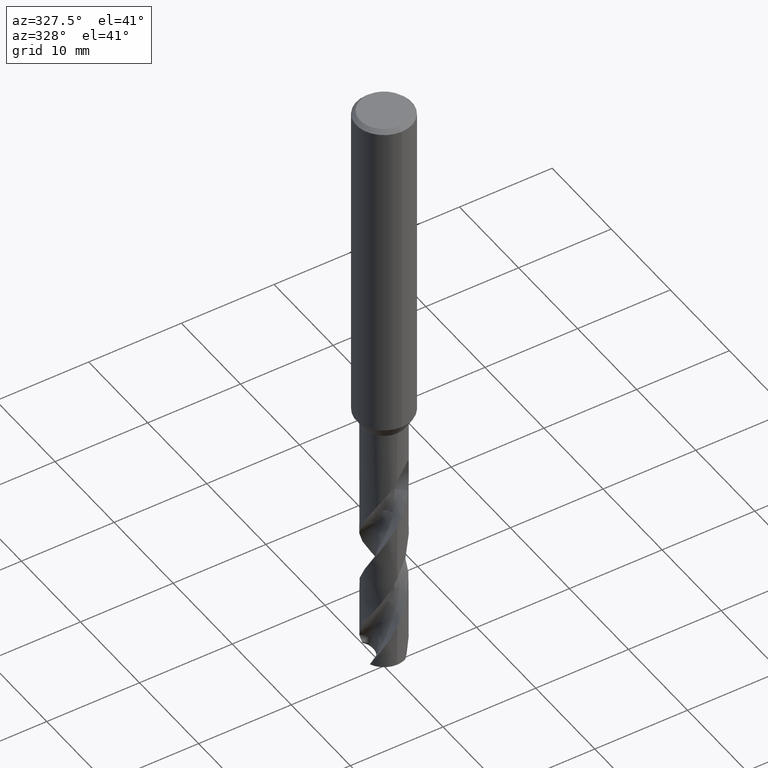
[diagram: clean part render]
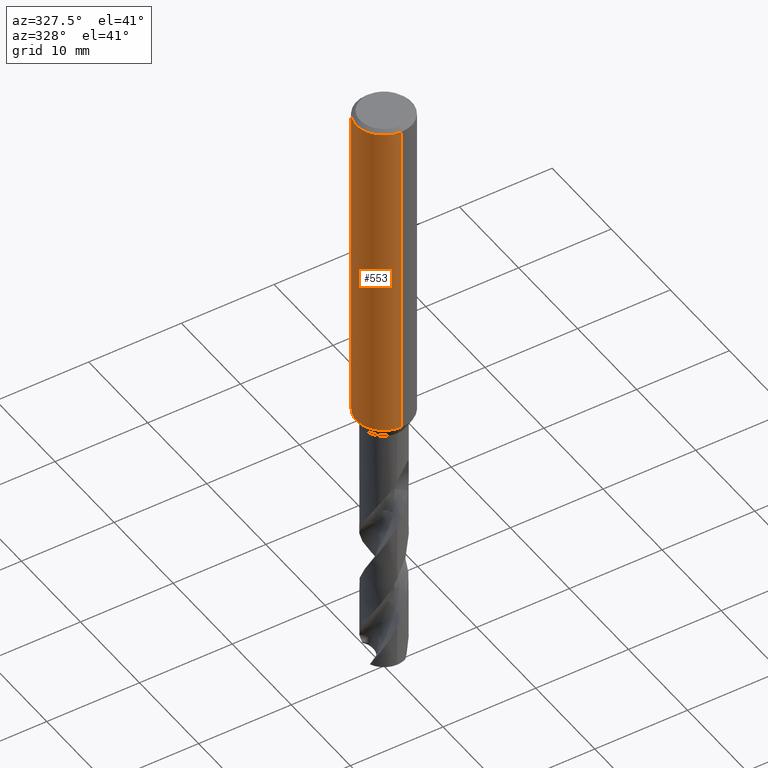
[diagram: same view with one face highlighted and labeled with its STEP entity id]
A machine part, auxiliary view. The second image highlights one B-rep face of the part: STEP entity #553.
In plain terms, the highlighted cylindrical surface (edge-blend (fillet) strip) has radius 3 mm, axis along (-0, -0, 1).
Its self-contained STEP definition (entity closure, byte-faithful):
#355=EDGE_CURVE('',#601,#515,#887,.T.);
#367=VERTEX_POINT('',#899);
#453=VERTEX_POINT('',#992);
#465=VERTEX_POINT('',#1005);
#475=EDGE_CURVE('',#709,#551,#1017,.T.);
#479=VERTEX_POINT('',#1021);
#491=EDGE_CURVE('',#545,#735,#1035,.T.);
#513=VERTEX_POINT('',#1058);
#515=VERTEX_POINT('',#1060);
#531=EDGE_CURVE('',#453,#601,#1077,.T.);
#535=EDGE_CURVE('',#465,#709,#1081,.T.);
#545=VERTEX_POINT('',#1091);
#547=EDGE_CURVE('',#551,#545,#1093,.T.);
#551=VERTEX_POINT('',#1097);
#553=ADVANCED_FACE('',(#1099),#1100,.T.);
#571=EDGE_CURVE('',#367,#453,#1121,.T.);
#599=VERTEX_POINT('',#1153);
#601=VERTEX_POINT('',#1155);
#623=EDGE_CURVE('',#735,#479,#1180,.T.);
#643=EDGE_CURVE('',#599,#515,#1204,.T.);
#653=EDGE_CURVE('',#599,#465,#1215,.T.);
#683=EDGE_CURVE('',#513,#367,#1247,.T.);
#709=VERTEX_POINT('',#1275);
#735=VERTEX_POINT('',#1302);
#743=EDGE_CURVE('',#479,#513,#1311,.T.);
#887=LINE('',#2026,#2027);
#899=CARTESIAN_POINT('',(-3.67366600472444E-016,3.0,-32.7128911336578));
#992=CARTESIAN_POINT('',(-1.337052752443,2.68557069115386,-33.3720803908795));
#1005=CARTESIAN_POINT('',(3.67381906146713E-016,-3.0,-0.399999999999999));
#1017=LINE('',#2738,#2739);
#1021=CARTESIAN_POINT('',(-1.0350734039088,2.81578107254819,-31.3171221986971));
#1035=B_SPLINE_CURVE_WITH_KNOTS('',3,(#3354,#3355,#3356,#3357,#3358,#3359,#3360,#3361,#3362,#3363,#3364,#3365,#3366,#3367,#3368,#3369,#3370,#3371,#3372,#3373,#3374,#3375,#3376,#3377,#3378,#3379,#3380),.UNSPECIFIED.,.F.,.F.,(4,2,3,2,2,2,2,2,2,2,2,2,4),(-0.54422824842136,-0.27211412421068,0.0,0.272114124210678,0.544228248421357,0.817906359646673,1.09158447087199,1.36255924571499,1.63353402055798,1.90530456554772,2.17707511053746,2.4488456555272,2.72061620051693),.UNSPECIFIED.);
#1058=CARTESIAN_POINT('',(-2.06254272401587E-016,3.0,-32.5000801551881));
#1060=CARTESIAN_POINT('',(0.0,3.0,-36.0));
#1077=B_SPLINE_CURVE_WITH_KNOTS('',3,(#3581,#3582,#3583,#3584,#3585,#3586,#3587,#3588,#3589,#3590,#3591,#3592,#3593,#3594,#3595,#3596),.UNSPECIFIED.,.F.,.F.,(4,2,2,2,2,2,2,4),(5.66023402257373,6.29060333517104,6.60504483258975,6.91948633000846,7.23392782742717,7.54836932484587,7.86141901111221,8.17446869737855),.UNSPECIFIED.);
#1081=CIRCLE('',#3601,3.0);
#1091=CARTESIAN_POINT('',(-0.486378944383045,2.96031003823262,-31.6432837483006));
#1093=B_SPLINE_CURVE_WITH_KNOTS('',3,(#3658,#3659,#3660,#3661,#3662,#3663,#3664,#3665,#3666,#3667,#3668,#3669,#3670,#3671,#3672,#3673,#3674,#3675,#3676,#3677,#3678,#3679,#3680,#3681,#3682,#3683,#3684),.UNSPECIFIED.,.F.,.F.,(4,2,3,2,2,2,2,2,2,2,2,2,4),(-0.54422824842136,-0.27211412421068,0.0,0.272114124210678,0.544228248421357,0.817906359646673,1.09158447087199,1.36255924571499,1.63353402055798,1.90530456554772,2.17707511053746,2.4488456555272,2.72061620051693),.UNSPECIFIED.);
#1097=CARTESIAN_POINT('',(-1.20768269592175E-015,3.0,-32.0232688117743));
#1099=FACE_OUTER_BOUND('',#3690,.T.);
#1100=CYLINDRICAL_SURFACE('',#3691,3.0);
#1121=ELLIPSE('',#3879,3.34478529612858,3.0);
#1153=CARTESIAN_POINT('',(3.67381906146713E-016,-3.0,-36.0));
#1155=CARTESIAN_POINT('',(-2.46407913303377E-016,3.0,-34.0310253601033));
#1180=CIRCLE('',#5066,3.0);
#1204=CIRCLE('',#5110,3.0);
#1215=LINE('',#5180,#5181);
#1247=LINE('',#5785,#5786);
#1275=CARTESIAN_POINT('',(0.0,3.0,-0.399999999999999));
#1302=CARTESIAN_POINT('',(-0.562333990228013,2.94682549253162,-31.3171221986971));
#1311=B_SPLINE_CURVE_WITH_KNOTS('',3,(#6642,#6643,#6644,#6645,#6646,#6647,#6648,#6649,#6650,#6651,#6652,#6653,#6654,#6655),.UNSPECIFIED.,.F.,.F.,(4,2,2,2,2,2,4),(3.16026050654945,3.61086409539206,4.06146768423468,4.51207127307729,4.95991823802074,5.40776520296419,5.86282890530594),.UNSPECIFIED.);
#2026=CARTESIAN_POINT('',(-3.67381906146713E-016,3.0,-18.2));
#2027=VECTOR('',#7010,1.0);
#2738=CARTESIAN_POINT('',(-3.67381906146713E-016,3.0,-18.2));
#2739=VECTOR('',#7125,1.0);
#3354=CARTESIAN_POINT('',(0.665621182276714,2.92522622060321,-30.8140957881762));
#3355=CARTESIAN_POINT('',(0.728850563417096,2.91083867849353,-30.877518087557));
#3356=CARTESIAN_POINT('',(0.783900459387161,2.89602337967411,-30.9578702196133));
#3357=CARTESIAN_POINT('',(0.857188692916628,2.87518328740958,-31.1345580124299));
#3358=CARTESIAN_POINT('',(0.875400981188567,2.86943777108584,-31.2309373045166));
#3359=CARTESIAN_POINT('',(0.875400981188567,2.86943777108584,-31.3216420125868));
#3360=CARTESIAN_POINT('',(0.875400981188567,2.86943777108584,-31.412346720657));
#3361=CARTESIAN_POINT('',(0.857188692916629,2.87518328740958,-31.5087260127437));
#3362=CARTESIAN_POINT('',(0.783900459387161,2.89602337967411,-31.6854138055602));
#3363=CARTESIAN_POINT('',(0.728850563417096,2.91083867849353,-31.7657659376165));
#3364=CARTESIAN_POINT('',(0.60202838769231,2.93969645569731,-31.8929750586276));
#3365=CARTESIAN_POINT('',(0.5214778595293,2.95568533572518,-31.9483797636259));
#3366=CARTESIAN_POINT('',(0.34429909105015,2.98152194310932,-32.0221641076746));
#3367=CARTESIAN_POINT('',(0.247628172090375,2.99115403786358,-32.0405166027747));
#3368=CARTESIAN_POINT('',(0.0663244946631877,3.00062654348629,-32.0405166027747));
#3369=CARTESIAN_POINT('',(-0.0299285908853379,3.00115720326599,-32.0224875186921));
#3370=CARTESIAN_POINT('',(-0.206881310600538,2.99416773126077,-31.949244373347));
#3371=CARTESIAN_POINT('',(-0.287593937381961,2.98687212067831,-31.8940404490632));
#3372=CARTESIAN_POINT('',(-0.415200117492864,2.97182576996222,-31.7666805419979));
#3373=CARTESIAN_POINT('',(-0.470604049431396,2.96309385107775,-31.6859121102136));
#3374=CARTESIAN_POINT('',(-0.544183869965539,2.95046729924835,-31.5086992019516));
#3375=CARTESIAN_POINT('',(-0.562348199187247,2.94682278104247,-31.41223219425));
#3376=CARTESIAN_POINT('',(-0.562348199187247,2.94682278104247,-31.2310518309235));
#3377=CARTESIAN_POINT('',(-0.54418386996554,2.95046729924835,-31.134584823222));
#3378=CARTESIAN_POINT('',(-0.4706040494314,2.96309385107775,-30.95737191496));
#3379=CARTESIAN_POINT('',(-0.415200117492863,2.97182576996222,-30.8766034831756));
#3380=CARTESIAN_POINT('',(-0.351303479704285,2.97935997575782,-30.812830162452));
#3581=CARTESIAN_POINT('',(-1.53050642192579,2.58022287650581,-33.0319811255889));
#3582=CARTESIAN_POINT('',(-1.44691631248335,2.62980577312329,-33.2314887010961));
#3583=CARTESIAN_POINT('',(-1.32276760444366,2.69707077181617,-33.4113258593841));
#3584=CARTESIAN_POINT('',(-1.10973155101076,2.78826898930335,-33.6245951706909));
#3585=CARTESIAN_POINT('',(-1.02948996220254,2.81934349084513,-33.6916117853674));
#3586=CARTESIAN_POINT('',(-0.853932698223484,2.87738531454781,-33.8105216600777));
#3587=CARTESIAN_POINT('',(-0.758609991487907,2.90431263574779,-33.8624240602539));
#3588=CARTESIAN_POINT('',(-0.558469552260235,2.94934446690523,-33.9464055954533));
#3589=CARTESIAN_POINT('',(-0.453457041446381,2.96746268462387,-33.9785511641911));
#3590=CARTESIAN_POINT('',(-0.240810292537893,2.99223469602914,-34.0209924679526));
#3591=CARTESIAN_POINT('',(-0.133171317626829,2.99887501234033,-34.0312723335086));
#3592=CARTESIAN_POINT('',(0.0759830626177195,3.00085245803086,-34.0312723335086));
#3593=CARTESIAN_POINT('',(0.183273473896684,2.99629272230549,-34.0210815541729));
#3594=CARTESIAN_POINT('',(0.39543915272815,2.97573303917486,-33.9788816901513));
#3595=CARTESIAN_POINT('',(0.500318639064909,2.95974677710468,-33.9468871509919));
#3596=CARTESIAN_POINT('',(0.600330982089903,2.93932011049205,-33.9050368602192));
#3601=AXIS2_PLACEMENT_3D('',#7181,#7182,#7183);
#3658=CARTESIAN_POINT('',(0.665621182276714,2.92522622060321,-30.8140957881762));
#3659=CARTESIAN_POINT('',(0.728850563417096,2.91083867849353,-30.877518087557));
#3660=CARTESIAN_POINT('',(0.783900459387161,2.89602337967411,-30.9578702196133));
#3661=CARTESIAN_POINT('',(0.857188692916628,2.87518328740958,-31.1345580124299));
#3662=CARTESIAN_POINT('',(0.875400981188567,2.86943777108584,-31.2309373045166));
#3663=CARTESIAN_POINT('',(0.875400981188567,2.86943777108584,-31.3216420125868));
#3664=CARTESIAN_POINT('',(0.875400981188567,2.86943777108584,-31.412346720657));
#3665=CARTESIAN_POINT('',(0.857188692916629,2.87518328740958,-31.5087260127437));
#3666=CARTESIAN_POINT('',(0.783900459387161,2.89602337967411,-31.6854138055602));
#3667=CARTESIAN_POINT('',(0.728850563417096,2.91083867849353,-31.7657659376165));
#3668=CARTESIAN_POINT('',(0.60202838769231,2.93969645569731,-31.8929750586276));
#3669=CARTESIAN_POINT('',(0.5214778595293,2.95568533572518,-31.9483797636259));
#3670=CARTESIAN_POINT('',(0.34429909105015,2.98152194310932,-32.0221641076746));
#3671=CARTESIAN_POINT('',(0.247628172090375,2.99115403786358,-32.0405166027747));
#3672=CARTESIAN_POINT('',(0.0663244946631877,3.00062654348629,-32.0405166027747));
#3673=CARTESIAN_POINT('',(-0.0299285908853379,3.00115720326599,-32.0224875186921));
#3674=CARTESIAN_POINT('',(-0.206881310600538,2.99416773126077,-31.949244373347));
#3675=CARTESIAN_POINT('',(-0.287593937381961,2.98687212067831,-31.8940404490632));
#3676=CARTESIAN_POINT('',(-0.415200117492864,2.97182576996222,-31.7666805419979));
#3677=CARTESIAN_POINT('',(-0.470604049431396,2.96309385107775,-31.6859121102136));
#3678=CARTESIAN_POINT('',(-0.544183869965539,2.95046729924835,-31.5086992019516));
#3679=CARTESIAN_POINT('',(-0.562348199187247,2.94682278104247,-31.41223219425));
#3680=CARTESIAN_POINT('',(-0.562348199187247,2.94682278104247,-31.2310518309235));
#3681=CARTESIAN_POINT('',(-0.54418386996554,2.95046729924835,-31.134584823222));
#3682=CARTESIAN_POINT('',(-0.4706040494314,2.96309385107775,-30.95737191496));
#3683=CARTESIAN_POINT('',(-0.415200117492863,2.97182576996222,-30.8766034831756));
#3684=CARTESIAN_POINT('',(-0.351303479704285,2.97935997575782,-30.812830162452));
#3690=EDGE_LOOP('',(#7186,#7187,#7188,#7189,#7190,#7191,#7192,#7193,#7194,#7195,#7196,#7197));
#3691=AXIS2_PLACEMENT_3D('',#7198,#7199,#7200);
#3879=AXIS2_PLACEMENT_3D('',#7236,#7237,#7238);
#5066=AXIS2_PLACEMENT_3D('',#7306,#7307,#7308);
#5110=AXIS2_PLACEMENT_3D('',#7345,#7346,#7347);
#5180=CARTESIAN_POINT('',(3.67381906146713E-016,-3.0,-18.2));
#5181=VECTOR('',#7356,1.0);
#5785=CARTESIAN_POINT('',(-3.67381906146713E-016,3.0,-18.2));
#5786=VECTOR('',#7374,1.0);
#6642=CARTESIAN_POINT('',(-0.944028754947609,2.84759718180646,-30.87109591768));
#6643=CARTESIAN_POINT('',(-1.00479265183033,2.82745289805341,-31.0168616503562));
#6644=CARTESIAN_POINT('',(-1.03510901790186,2.81576798068631,-31.1761006644519));
#6645=CARTESIAN_POINT('',(-1.03510901790186,2.81576798068631,-31.4765030570137));
#6646=CARTESIAN_POINT('',(-1.00479265183033,2.82745289805341,-31.6357420711094));
#6647=CARTESIAN_POINT('',(-0.88326485806506,2.86774146555976,-31.9272735364618));
#6648=CARTESIAN_POINT('',(-0.792109261194285,2.89554580131596,-32.0596991578702));
#6649=CARTESIAN_POINT('',(-0.582867737485067,2.94478284423827,-32.2682275153448));
#6650=CARTESIAN_POINT('',(-0.450640829386874,2.96956027684007,-32.358826497016));
#6651=CARTESIAN_POINT('',(-0.159819744133953,2.99930375982357,-32.4794282329782));
#6652=CARTESIAN_POINT('',(-0.00114290335869099,3.00371168811663,-32.5093686300866));
#6653=CARTESIAN_POINT('',(0.299461057962613,2.98886806232847,-32.5093686300866));
#6654=CARTESIAN_POINT('',(0.459264276215476,2.96836791045541,-32.4785566268234));
#6655=CARTESIAN_POINT('',(0.604975334200916,2.93836771779988,-32.4175314011172));
#7010=DIRECTION('',(0.0,0.0,-1.0));
#7125=DIRECTION('',(0.0,0.0,-1.0));
#7181=CARTESIAN_POINT('',(0.0,0.0,-0.399999999999999));
#7182=DIRECTION('',(0.0,0.0,-1.0));
#7183=DIRECTION('',(0.0,1.0,0.0));
#7186=ORIENTED_EDGE('',*,*,#475,.T.);
#7187=ORIENTED_EDGE('',*,*,#547,.T.);
#7188=ORIENTED_EDGE('',*,*,#491,.T.);
#7189=ORIENTED_EDGE('',*,*,#623,.T.);
#7190=ORIENTED_EDGE('',*,*,#743,.T.);
#7191=ORIENTED_EDGE('',*,*,#683,.T.);
#7192=ORIENTED_EDGE('',*,*,#571,.T.);
#7193=ORIENTED_EDGE('',*,*,#531,.T.);
#7194=ORIENTED_EDGE('',*,*,#355,.T.);
#7195=ORIENTED_EDGE('',*,*,#643,.F.);
#7196=ORIENTED_EDGE('',*,*,#653,.T.);
#7197=ORIENTED_EDGE('',*,*,#535,.T.);
#7198=CARTESIAN_POINT('',(0.0,0.0,-18.2));
#7199=DIRECTION('',(-0.0,-0.0,1.0));
#7200=DIRECTION('',(0.0,1.0,0.0));
#7236=CARTESIAN_POINT('',(0.0,0.0,-32.7128911336578));
#7237=DIRECTION('',(-0.442195774284071,0.0,0.896918556617774));
#7238=DIRECTION('',(0.896918556617774,-0.0,0.442195774284071));
#7306=CARTESIAN_POINT('',(0.0,0.0,-31.3171221986971));
#7307=DIRECTION('',(0.0,-0.0,1.0));
#7308=DIRECTION('',(0.0,1.0,0.0));
#7345=CARTESIAN_POINT('',(0.0,0.0,-36.0));
#7346=DIRECTION('',(0.0,0.0,-1.0));
#7347=DIRECTION('',(0.0,1.0,0.0));
#7356=DIRECTION('',(-0.0,-0.0,1.0));
#7374=DIRECTION('',(0.0,0.0,-1.0));